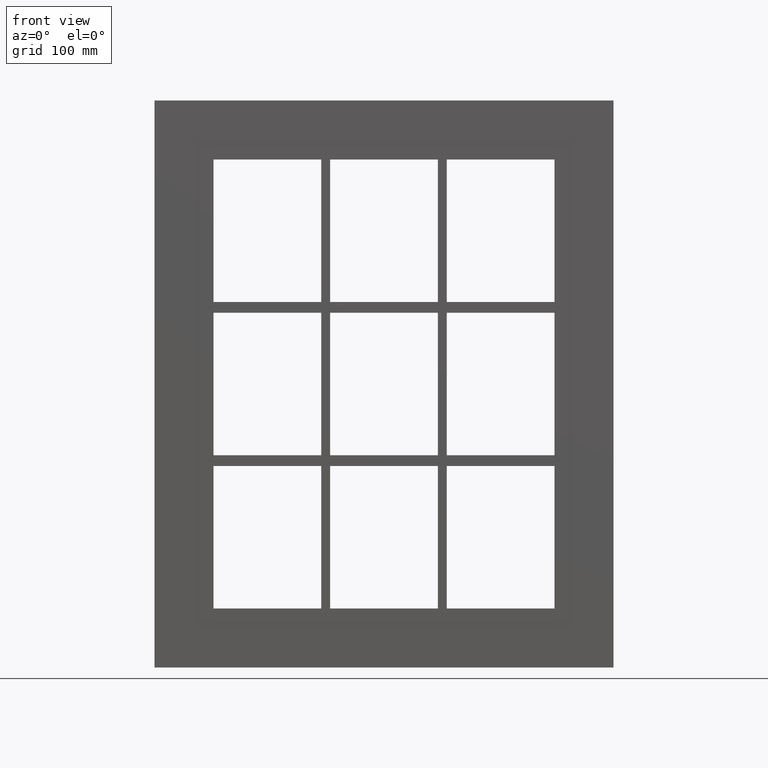
[diagram: clean part render]
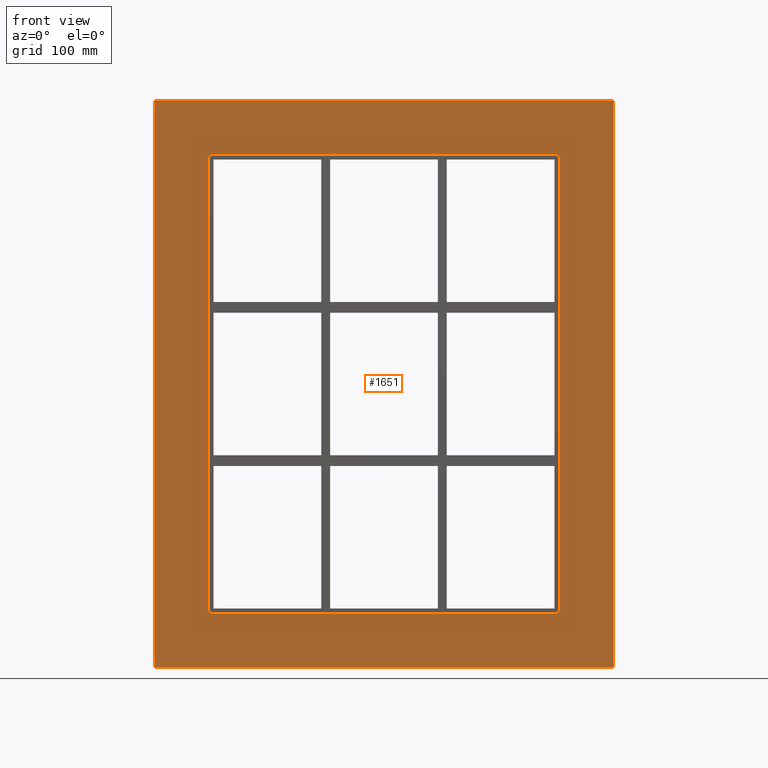
[diagram: same view with one face highlighted and labeled with its STEP entity id]
A machine part, front view. The second image highlights one B-rep face of the part: STEP entity #1651.
In plain terms, the highlighted planar face has unit normal (0, 1, 0).
Its self-contained STEP definition (entity closure, byte-faithful):
#1542=CARTESIAN_POINT('',(0.0,0.0,-9.817930E-015));
#1543=DIRECTION('',(0.0,1.0,0.0));
#1544=DIRECTION('',(0.0,0.0,1.0));
#1545=AXIS2_PLACEMENT_3D('',#1542,#1543,#1544);
#1546=PLANE('',#1545);
#1547=CARTESIAN_POINT('',(-256.75000000000006,0.0,317.24999999999994));
#1548=VERTEX_POINT('',#1547);
#1549=CARTESIAN_POINT('',(256.75000000000006,0.0,317.24999999999994));
#1550=VERTEX_POINT('',#1549);
#1551=CARTESIAN_POINT('',(-256.75000000000006,0.0,317.24999999999994));
#1552=DIRECTION('',(1.0,0.0,0.0));
#1553=VECTOR('',#1552,513.50000000000011);
#1554=LINE('',#1551,#1553);
#1555=EDGE_CURVE('',#1548,#1550,#1554,.T.);
#1556=ORIENTED_EDGE('',*,*,#1555,.F.);
#1557=CARTESIAN_POINT('',(-256.75000000000006,0.0,-317.25));
#1558=VERTEX_POINT('',#1557);
#1559=CARTESIAN_POINT('',(-256.75000000000006,0.0,-317.25));
#1560=DIRECTION('',(0.0,0.0,1.0));
#1561=VECTOR('',#1560,634.49999999999989);
#1562=LINE('',#1559,#1561);
#1563=EDGE_CURVE('',#1558,#1548,#1562,.T.);
#1564=ORIENTED_EDGE('',*,*,#1563,.F.);
#1565=CARTESIAN_POINT('',(256.75000000000006,0.0,-317.25));
#1566=VERTEX_POINT('',#1565);
#1567=CARTESIAN_POINT('',(256.75000000000006,0.0,-317.25));
#1568=DIRECTION('',(-1.0,0.0,0.0));
#1569=VECTOR('',#1568,513.50000000000011);
#1570=LINE('',#1567,#1569);
#1571=EDGE_CURVE('',#1566,#1558,#1570,.T.);
#1572=ORIENTED_EDGE('',*,*,#1571,.F.);
#1573=CARTESIAN_POINT('',(256.75000000000006,0.0,317.24999999999994));
#1574=DIRECTION('',(0.0,0.0,-1.0));
#1575=VECTOR('',#1574,634.49999999999989);
#1576=LINE('',#1573,#1575);
#1577=EDGE_CURVE('',#1550,#1566,#1576,.T.);
#1578=ORIENTED_EDGE('',*,*,#1577,.F.);
#1579=EDGE_LOOP('',(#1556,#1564,#1572,#1578));
#1580=FACE_OUTER_BOUND('',#1579,.T.);
#1581=CARTESIAN_POINT('',(-196.75000000000006,0.0,-251.25));
#1582=VERTEX_POINT('',#1581);
#1583=CARTESIAN_POINT('',(-190.75000000000003,0.0,-257.25));
#1584=VERTEX_POINT('',#1583);
#1585=CARTESIAN_POINT('',(-190.75000000000003,0.0,-251.25));
#1586=DIRECTION('',(0.0,-1.0,0.0));
#1587=DIRECTION('',(-0.707106781186548,0.0,-0.707106781186548));
#1588=AXIS2_PLACEMENT_3D('',#1585,#1586,#1587);
#1589=CIRCLE('',#1588,6.000000000000002);
#1590=EDGE_CURVE('',#1582,#1584,#1589,.T.);
#1591=ORIENTED_EDGE('',*,*,#1590,.F.);
#1592=CARTESIAN_POINT('',(-196.75000000000006,0.0,251.25));
#1593=VERTEX_POINT('',#1592);
#1594=CARTESIAN_POINT('',(-196.75000000000006,0.0,251.25));
#1595=DIRECTION('',(0.0,0.0,-1.0));
#1596=VECTOR('',#1595,502.5);
#1597=LINE('',#1594,#1596);
#1598=EDGE_CURVE('',#1593,#1582,#1597,.T.);
#1599=ORIENTED_EDGE('',*,*,#1598,.F.);
#1600=CARTESIAN_POINT('',(-190.75000000000003,0.0,257.25));
#1601=VERTEX_POINT('',#1600);
#1602=CARTESIAN_POINT('',(-190.75000000000003,0.0,251.25));
#1603=DIRECTION('',(0.0,-1.0,0.0));
#1604=DIRECTION('',(-0.707106781186548,0.0,0.707106781186548));
#1605=AXIS2_PLACEMENT_3D('',#1602,#1603,#1604);
#1606=CIRCLE('',#1605,6.000000000000002);
#1607=EDGE_CURVE('',#1601,#1593,#1606,.T.);
#1608=ORIENTED_EDGE('',*,*,#1607,.F.);
#1609=CARTESIAN_POINT('',(190.75000000000003,0.0,257.25));
#1610=VERTEX_POINT('',#1609);
#1611=CARTESIAN_POINT('',(190.75000000000003,0.0,257.25));
#1612=DIRECTION('',(-1.0,0.0,0.0));
#1613=VECTOR('',#1612,381.50000000000006);
#1614=LINE('',#1611,#1613);
#1615=EDGE_CURVE('',#1610,#1601,#1614,.T.);
#1616=ORIENTED_EDGE('',*,*,#1615,.F.);
#1617=CARTESIAN_POINT('',(196.75000000000006,0.0,251.25));
#1618=VERTEX_POINT('',#1617);
#1619=CARTESIAN_POINT('',(190.75000000000003,0.0,251.25));
#1620=DIRECTION('',(0.0,-1.0,0.0));
#1621=DIRECTION('',(0.707106781186548,0.0,0.707106781186548));
#1622=AXIS2_PLACEMENT_3D('',#1619,#1620,#1621);
#1623=CIRCLE('',#1622,6.000000000000002);
#1624=EDGE_CURVE('',#1618,#1610,#1623,.T.);
#1625=ORIENTED_EDGE('',*,*,#1624,.F.);
#1626=CARTESIAN_POINT('',(196.75000000000006,0.0,-251.25));
#1627=VERTEX_POINT('',#1626);
#1628=CARTESIAN_POINT('',(196.75000000000006,0.0,-251.25));
#1629=DIRECTION('',(0.0,0.0,1.0));
#1630=VECTOR('',#1629,502.5);
#1631=LINE('',#1628,#1630);
#1632=EDGE_CURVE('',#1627,#1618,#1631,.T.);
#1633=ORIENTED_EDGE('',*,*,#1632,.F.);
#1634=CARTESIAN_POINT('',(190.75000000000003,0.0,-257.25));
#1635=VERTEX_POINT('',#1634);
#1636=CARTESIAN_POINT('',(190.75000000000003,0.0,-251.25));
#1637=DIRECTION('',(0.0,-1.0,0.0));
#1638=DIRECTION('',(0.707106781186548,0.0,-0.707106781186548));
#1639=AXIS2_PLACEMENT_3D('',#1636,#1637,#1638);
#1640=CIRCLE('',#1639,6.000000000000002);
#1641=EDGE_CURVE('',#1635,#1627,#1640,.T.);
#1642=ORIENTED_EDGE('',*,*,#1641,.F.);
#1643=CARTESIAN_POINT('',(-190.75000000000003,0.0,-257.25));
#1644=DIRECTION('',(1.0,0.0,0.0));
#1645=VECTOR('',#1644,381.50000000000006);
#1646=LINE('',#1643,#1645);
#1647=EDGE_CURVE('',#1584,#1635,#1646,.T.);
#1648=ORIENTED_EDGE('',*,*,#1647,.F.);
#1649=EDGE_LOOP('',(#1591,#1599,#1608,#1616,#1625,#1633,#1642,#1648));
#1650=FACE_BOUND('',#1649,.T.);
#1651=ADVANCED_FACE('',(#1580,#1650),#1546,.F.);